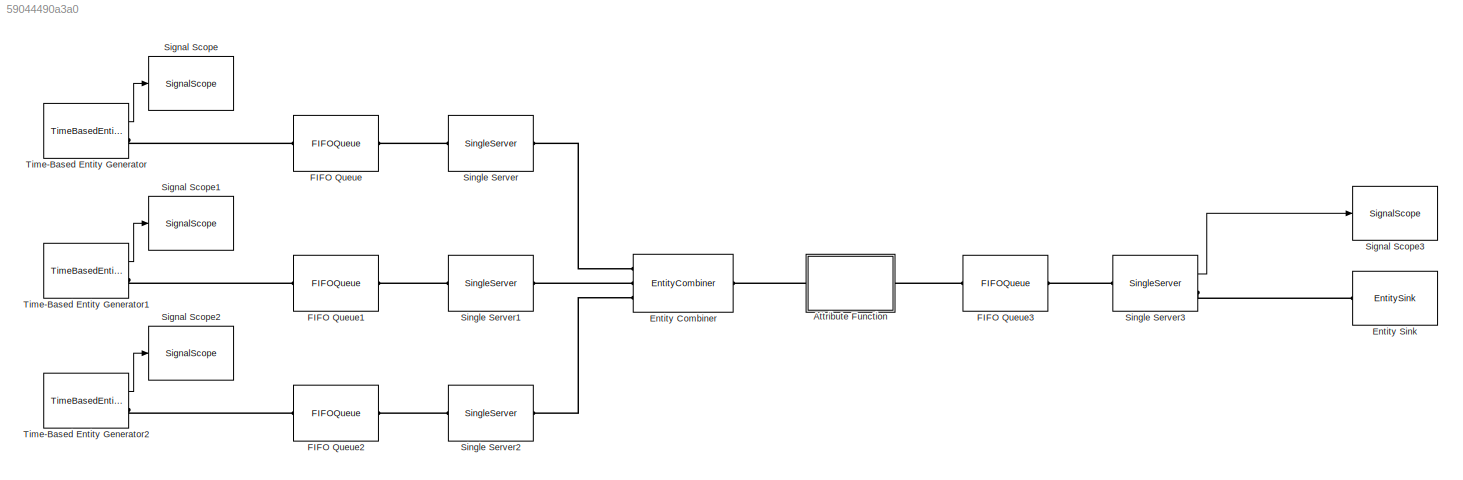
MODEL slx_59044490a3a0
KIND model
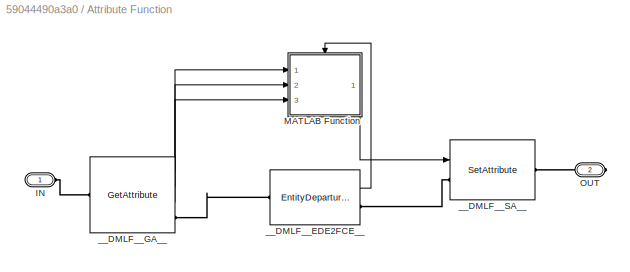
BLOCK [SubSystem] Attribute Function
  CopyFcn = des.afb.attributefunction_support(gcb,'CopyFcn');
  ErrorFcn = des.afb.error_redirect
  FunctionWithSeparateData = off
  LoadFcn = des.afb.attributefunction_support(gcb,'LoadFcn');
  MaskHideContents = on
  MinAlgLoopOccurrences = off
  Opaque = off
  OpenFcn = des.afb.attributefunction_support(gcb,'OpenFcn');
  Ports = [0, 0, 0, 0, 0, 1, 1]
  PropExecContextOutsideSubsystem = off
  RTWSystemCode = Auto
  RequestExecContextInheritance = off
  StartFcn = des.afb.attributefunction_support(gcb,'StartFcn');
BLOCK [PMIOPort] Attribute Function/IN
  Port = 1
  Side = Left
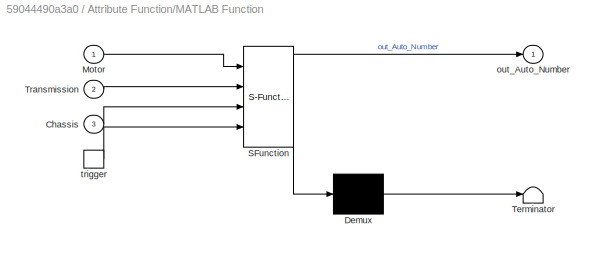
BLOCK [SubSystem] Attribute Function/MATLAB Function
  ErrorFcn = Stateflow.Translate.translate
  FunctionWithSeparateData = off
  MaskHideContents = off
  MinAlgLoopOccurrences = off
  Opaque = off
  PermitHierarchicalResolution = ExplicitOnly
  Ports = [3, 1, 0, 1]
  PropExecContextOutsideSubsystem = off
  RTWSystemCode = Auto
  RequestExecContextInheritance = off
  SFBlockType = MATLAB Function
  TreatAsAtomicUnit = on
BLOCK [Demux] Attribute Function/MATLAB Function/ Demux 
  Outputs = 1
  Ports = [1, 1]
BLOCK [S-Function] Attribute Function/MATLAB Function/ SFunction 
  EnableBusSupport = on
  FunctionName = sf_sfun
  PortCounts = [4 2]
  Ports = [4, 2]
  Tag = Stateflow S-Function capitol6prob1 1
BLOCK [Terminator] Attribute Function/MATLAB Function/ Terminator 
BLOCK [Inport] Attribute Function/MATLAB Function/Chassis
  IconDisplay = Port number
  Port = 3
BLOCK [Inport] Attribute Function/MATLAB Function/Motor
  IconDisplay = Port number
BLOCK [Inport] Attribute Function/MATLAB Function/Transmission
  IconDisplay = Port number
  Port = 2
BLOCK [Outport] Attribute Function/MATLAB Function/out_Auto_Number
  IconDisplay = Port number
BLOCK [TriggerPort] Attribute Function/MATLAB Function/trigger
  Ports = [0, 1]
  ShowOutputPort = on
  TriggerType = function-call
BLOCK [PMIOPort] Attribute Function/OUT
  Port = 2
  Side = Right
BLOCK [EntityDepartureFunctionCallGenerator] Attribute Function/__DMLF__EDE2FCE__
  IsInsideAFB = on
  OutputPortMap = o0
  Ports = [0, 1, 0, 0, 0, 1, 1]
  TimingFunctionCallF1 = Before entity departure
BLOCK [GetAttribute] Attribute Function/__DMLF__GA__
  AttributeDefaultValue = 1|1|1
  AttributeMissing = Error|Error|Error
  AttributeName = Motor|Transmission|Chassis
  AttributeSendTiming = Before entity departure|Before entity departure|Before entity departure
  AttributeTreatAsVector = 1|1|1
  EvaluatedDefaultAttributeValue = { [];[];[]}
  IsInsideAFB = on
  OutputPortMap = o1,o2,o3
  Ports = [0, 3, 0, 0, 0, 1, 1]
BLOCK [SetAttribute] Attribute Function/__DMLF__SA__
  AttributeFrom = Signal port
  AttributeName = Auto_Number
  EvaluatedAttributeValue = { []}
  InputPortMap = u0
  IsInsideAFB = on
  Ports = [1, 0, 0, 0, 0, 1, 1]
BLOCK [EntityCombiner] Entity Combiner
  Ports = [0, 0, 0, 0, 0, 3, 1]
BLOCK [EntitySink] Entity Sink
  Ports = [0, 0, 0, 0, 0, 1]
BLOCK [FIFOQueue] FIFO Queue
  Ports = [0, 0, 0, 0, 0, 1, 1]
BLOCK [FIFOQueue] FIFO Queue1
  Ports = [0, 0, 0, 0, 0, 1, 1]
BLOCK [FIFOQueue] FIFO Queue2
  Ports = [0, 0, 0, 0, 0, 1, 1]
BLOCK [FIFOQueue] FIFO Queue3
  Ports = [0, 0, 0, 0, 0, 1, 1]
BLOCK [SignalScope] Signal Scope
  CopyFcn = des.scope.CallbackSupport('seCopyFcn',gcbh)
  DeleteFcn = des.scope.CallbackSupport('seDeleteFcn',gcbh)
  InputPortMap = u0
  LoadFcn = des.scope.CallbackSupport('seLoadFcn',gcbh)
  NameChangeFcn = des.scope.CallbackSupport('seNameChangeFcn',gcbh)
  OpenFcn = des.scope.CallbackSupport('seOpenFcn',gcbh)
  Ports = [1]
  PreSaveFcn = des.scope.CallbackSupport('sePreSaveFcn',gcbh)
  StartFcn = des.scope.CallbackSupport('seStartFcn',gcbh)
  StopFcn = des.scope.CallbackSupport('seStopFcn',gcbh)
BLOCK [SignalScope] Signal Scope1
  CopyFcn = des.scope.CallbackSupport('seCopyFcn',gcbh)
  DeleteFcn = des.scope.CallbackSupport('seDeleteFcn',gcbh)
  InputPortMap = u0
  LoadFcn = des.scope.CallbackSupport('seLoadFcn',gcbh)
  NameChangeFcn = des.scope.CallbackSupport('seNameChangeFcn',gcbh)
  OpenFcn = des.scope.CallbackSupport('seOpenFcn',gcbh)
  Ports = [1]
  PreSaveFcn = des.scope.CallbackSupport('sePreSaveFcn',gcbh)
  StartFcn = des.scope.CallbackSupport('seStartFcn',gcbh)
  StopFcn = des.scope.CallbackSupport('seStopFcn',gcbh)
BLOCK [SignalScope] Signal Scope2
  CopyFcn = des.scope.CallbackSupport('seCopyFcn',gcbh)
  DeleteFcn = des.scope.CallbackSupport('seDeleteFcn',gcbh)
  InputPortMap = u0
  LoadFcn = des.scope.CallbackSupport('seLoadFcn',gcbh)
  NameChangeFcn = des.scope.CallbackSupport('seNameChangeFcn',gcbh)
  OpenFcn = des.scope.CallbackSupport('seOpenFcn',gcbh)
  Ports = [1]
  PreSaveFcn = des.scope.CallbackSupport('sePreSaveFcn',gcbh)
  StartFcn = des.scope.CallbackSupport('seStartFcn',gcbh)
  StopFcn = des.scope.CallbackSupport('seStopFcn',gcbh)
BLOCK [SignalScope] Signal Scope3
  CopyFcn = des.scope.CallbackSupport('seCopyFcn',gcbh)
  DeleteFcn = des.scope.CallbackSupport('seDeleteFcn',gcbh)
  InputPortMap = u0
  LoadFcn = des.scope.CallbackSupport('seLoadFcn',gcbh)
  NameChangeFcn = des.scope.CallbackSupport('seNameChangeFcn',gcbh)
  OpenFcn = des.scope.CallbackSupport('seOpenFcn',gcbh)
  Ports = [1]
  PreSaveFcn = des.scope.CallbackSupport('sePreSaveFcn',gcbh)
  StartFcn = des.scope.CallbackSupport('seStartFcn',gcbh)
  StopFcn = des.scope.CallbackSupport('seStopFcn',gcbh)
BLOCK [SingleServer] Single Server
  Ports = [0, 0, 0, 0, 0, 1, 1]
  ServiceTime = 0.6
BLOCK [SingleServer] Single Server1
  Ports = [0, 0, 0, 0, 0, 1, 1]
  ServiceTime = 0.4
BLOCK [SingleServer] Single Server2
  Ports = [0, 0, 0, 0, 0, 1, 1]
  ServiceTime = 0.4
BLOCK [SingleServer] Single Server3
  OutputPortMap = o0
  Ports = [0, 1, 0, 0, 0, 1, 1]
  ServiceTime = 0.3
  StatNumberDeparted = on
BLOCK [TimeBasedEntityGenerator] Time-Based Entity Generator
  OutputPortMap = o0
  Period = 0.8
  Ports = [0, 1, 0, 0, 0, 0, 1]
  StatNumberDeparted = on
BLOCK [TimeBasedEntityGenerator] Time-Based Entity Generator1
  OutputPortMap = o0
  Period = 0.6
  Ports = [0, 1, 0, 0, 0, 0, 1]
  StatNumberDeparted = on
BLOCK [TimeBasedEntityGenerator] Time-Based Entity Generator2
  OutputPortMap = o0
  Period = 0.4
  Ports = [0, 1, 0, 0, 0, 0, 1]
  StatNumberDeparted = on
LINE Attribute Function/MATLAB Function:1 -> Attribute Function/__DMLF__SA__:1
LINE Attribute Function/__DMLF__EDE2FCE__:1 -> Attribute Function/MATLAB Function:trigger
LINE Attribute Function/__DMLF__GA__:1 -> Attribute Function/MATLAB Function:1
LINE Attribute Function/__DMLF__GA__:2 -> Attribute Function/MATLAB Function:2
LINE Attribute Function/__DMLF__GA__:3 -> Attribute Function/MATLAB Function:3
LINE Single Server3:1 -> Signal Scope3:1
LINE Time-Based Entity Generator1:1 -> Signal Scope1:1
LINE Time-Based Entity Generator2:1 -> Signal Scope2:1
LINE Time-Based Entity Generator:1 -> Signal Scope:1
PLINE Attribute Function/IN:RConn1 -- Attribute Function/__DMLF__GA__:LConn1
PLINE Attribute Function/OUT:RConn1 -- Attribute Function/__DMLF__SA__:RConn1
PLINE Attribute Function/__DMLF__EDE2FCE__:LConn1 -- Attribute Function/__DMLF__GA__:RConn1
PLINE Attribute Function/__DMLF__EDE2FCE__:RConn1 -- Attribute Function/__DMLF__SA__:LConn1
PLINE Attribute Function:LConn1 -- Entity Combiner:RConn1
PLINE Attribute Function:RConn1 -- FIFO Queue3:LConn1
PLINE Entity Combiner:LConn1 -- Single Server:RConn1
PLINE Entity Combiner:LConn2 -- Single Server1:RConn1
PLINE Entity Combiner:LConn3 -- Single Server2:RConn1
PLINE Entity Sink:LConn1 -- Single Server3:RConn1
PLINE FIFO Queue1:LConn1 -- Time-Based Entity Generator1:RConn1
PLINE FIFO Queue1:RConn1 -- Single Server1:LConn1
PLINE FIFO Queue2:LConn1 -- Time-Based Entity Generator2:RConn1
PLINE FIFO Queue2:RConn1 -- Single Server2:LConn1
PLINE FIFO Queue3:RConn1 -- Single Server3:LConn1
PLINE FIFO Queue:LConn1 -- Time-Based Entity Generator:RConn1
PLINE FIFO Queue:RConn1 -- Single Server:LConn1
